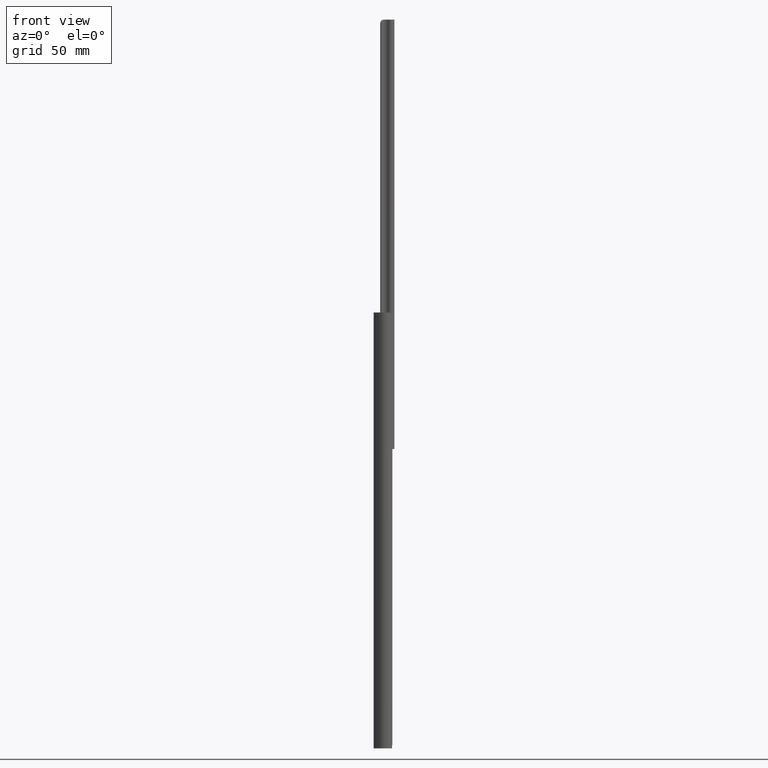
[diagram: clean part render]
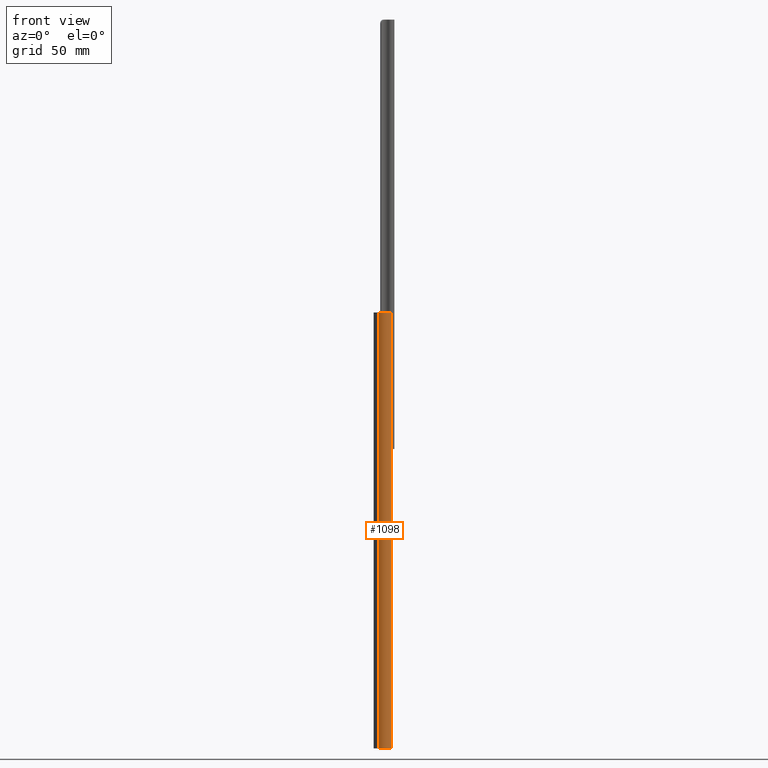
[diagram: same view with one face highlighted and labeled with its STEP entity id]
A machine part, front view. The second image highlights one B-rep face of the part: STEP entity #1098.
In plain terms, the highlighted cylindrical surface (edge-blend (fillet) strip) has radius 3.94 mm, axis along (0, 0, 1).
Its self-contained STEP definition (entity closure, byte-faithful):
#39 = AXIS2_PLACEMENT_3D ( 'NONE', #2961, #2633, #3329 ) ;
#145 = VECTOR ( 'NONE', #305, 1000.000000000000000 ) ;
#171 = CARTESIAN_POINT ( 'NONE',  ( 7.986000717874983224, -12.34600071787499864, -199.6011382278531414 ) ) ;
#299 = VERTEX_POINT ( 'NONE', #2537 ) ;
#305 = DIRECTION ( 'NONE',  ( 0.0000000000000000000, 0.0000000000000000000, 1.000000000000000000 ) ) ;
#315 = EDGE_CURVE ( 'NONE', #299, #3075, #782, .T. ) ;
#423 = ORIENTED_EDGE ( 'NONE', *, *, #3108, .F. ) ;
#482 = ORIENTED_EDGE ( 'NONE', *, *, #1137, .T. ) ;
#492 = CARTESIAN_POINT ( 'NONE',  ( 5.199999999999988631, -9.560000000000002274, -200.0000000000000000 ) ) ;
#522 = CARTESIAN_POINT ( 'NONE',  ( 7.720683610697790300, -12.59516092882049243, -199.8301917521110340 ) ) ;
#551 = CARTESIAN_POINT ( 'NONE',  ( 7.210282003930991834, -12.95554516909084342, 2.981555974335136207E-16 ) ) ;
#614 = CARTESIAN_POINT ( 'NONE',  ( 7.986000717874983224, -12.34600071787499864, -199.6011382278531414 ) ) ;
#704 = B_SPLINE_CURVE_WITH_KNOTS ( 'NONE', 3,
 ( #1259, #1214, #3500, #522, #1847, #171 ),
 .UNSPECIFIED., .F., .F.,
 ( 4, 2, 4 ),
 ( 8.673617379884035472E-19, 0.0006435777314265649258, 0.001287155462853128984 ),
 .UNSPECIFIED. ) ;
#782 = CIRCLE ( 'NONE', #3691, 3.939999999999996394 ) ;
#937 = EDGE_CURVE ( 'NONE', #299, #3514, #1619, .T. ) ;
#1063 = CARTESIAN_POINT ( 'NONE',  ( 7.017185638022793270, -13.05591709812513379, 0.0000000000000000000 ) ) ;
#1075 = VERTEX_POINT ( 'NONE', #614 ) ;
#1098 = ADVANCED_FACE ( 'NONE', ( #2875 ), #4199, .T. ) ;
#1137 = EDGE_CURVE ( 'NONE', #1766, #3701, #1887, .T. ) ;
#1214 = CARTESIAN_POINT ( 'NONE',  ( 7.210287898225705483, -12.95554210522307947, -200.0000000000000284 ) ) ;
#1226 = CARTESIAN_POINT ( 'NONE',  ( 2.413999282124992263, -12.34600071787499864, -200.0000000000000000 ) ) ;
#1258 = AXIS2_PLACEMENT_3D ( 'NONE', #2903, #1266, #2965 ) ;
#1259 = CARTESIAN_POINT ( 'NONE',  ( 7.017185638022798599, -13.05591709812513024, -200.0000000000000000 ) ) ;
#1266 = DIRECTION ( 'NONE',  ( 0.0000000000000000000, 0.0000000000000000000, 1.000000000000000000 ) ) ;
#1311 = CARTESIAN_POINT ( 'NONE',  ( 7.862686910855398281, -12.46931452489458003, -0.2688228963870563648 ) ) ;
#1558 = DIRECTION ( 'NONE',  ( 1.000000000000000000, 0.0000000000000000000, 0.0000000000000000000 ) ) ;
#1603 = LINE ( 'NONE', #4203, #2899 ) ;
#1619 = LINE ( 'NONE', #1226, #145 ) ;
#1766 = VERTEX_POINT ( 'NONE', #2647 ) ;
#1847 = CARTESIAN_POINT ( 'NONE',  ( 7.862703922186483396, -12.46929751356349847, -199.7311591645482736 ) ) ;
#1887 = B_SPLINE_CURVE_WITH_KNOTS ( 'NONE', 3,
 ( #3571, #1311, #2221, #2571, #551, #2289 ),
 .UNSPECIFIED., .F., .F.,
 ( 4, 2, 4 ),
 ( 0.0000000000000000000, 0.0006438049403509742705, 0.001287609880701948541 ),
 .UNSPECIFIED. ) ;
#1962 = ORIENTED_EDGE ( 'NONE', *, *, #315, .T. ) ;
#2187 = CARTESIAN_POINT ( 'NONE',  ( 7.017185638022798599, -13.05591709812513024, -200.0000000000000000 ) ) ;
#2202 = ORIENTED_EDGE ( 'NONE', *, *, #3429, .T. ) ;
#2221 = CARTESIAN_POINT ( 'NONE',  ( 7.719589435054740711, -12.59608095792668792, -0.1691430043712723874 ) ) ;
#2281 = CARTESIAN_POINT ( 'NONE',  ( 2.413999282124992263, -12.34600071787499864, 0.0000000000000000000 ) ) ;
#2289 = CARTESIAN_POINT ( 'NONE',  ( 7.017185638022793270, -13.05591709812513379, 0.0000000000000000000 ) ) ;
#2537 = CARTESIAN_POINT ( 'NONE',  ( 2.413999282124992263, -12.34600071787499864, -200.0000000000000000 ) ) ;
#2571 = CARTESIAN_POINT ( 'NONE',  ( 7.388906070428872042, -12.84250037611028006, -0.03302800207852295278 ) ) ;
#2633 = DIRECTION ( 'NONE',  ( 0.0000000000000000000, 0.0000000000000000000, 1.000000000000000000 ) ) ;
#2647 = CARTESIAN_POINT ( 'NONE',  ( 7.986000717874983224, -12.34600071787499864, -0.3988617721469194799 ) ) ;
#2875 = FACE_OUTER_BOUND ( 'NONE', #3623, .T. ) ;
#2899 = VECTOR ( 'NONE', #2905, 1000.000000000000000 ) ;
#2903 = CARTESIAN_POINT ( 'NONE',  ( 5.199999999999988631, -9.560000000000002274, -200.0000000000000000 ) ) ;
#2905 = DIRECTION ( 'NONE',  ( 0.0000000000000000000, 0.0000000000000000000, 1.000000000000000000 ) ) ;
#2961 = CARTESIAN_POINT ( 'NONE',  ( 5.199999999999988631, -9.560000000000002274, 0.0000000000000000000 ) ) ;
#2965 = DIRECTION ( 'NONE',  ( 1.000000000000000000, 0.0000000000000000000, 0.0000000000000000000 ) ) ;
#3075 = VERTEX_POINT ( 'NONE', #2187 ) ;
#3108 = EDGE_CURVE ( 'NONE', #3514, #3701, #4061, .T. ) ;
#3121 = DIRECTION ( 'NONE',  ( 0.0000000000000000000, 0.0000000000000000000, 1.000000000000000000 ) ) ;
#3329 = DIRECTION ( 'NONE',  ( 1.000000000000000000, 0.0000000000000000000, 0.0000000000000000000 ) ) ;
#3429 = EDGE_CURVE ( 'NONE', #3075, #1075, #704, .T. ) ;
#3500 = CARTESIAN_POINT ( 'NONE',  ( 7.390375522778238171, -12.84150922569065756, -199.9665803470480796 ) ) ;
#3514 = VERTEX_POINT ( 'NONE', #2281 ) ;
#3571 = CARTESIAN_POINT ( 'NONE',  ( 7.986000717874983224, -12.34600071787499864, -0.3988617721469194799 ) ) ;
#3623 = EDGE_LOOP ( 'NONE', ( #3703, #482, #423, #4176, #1962, #2202 ) ) ;
#3691 = AXIS2_PLACEMENT_3D ( 'NONE', #492, #3121, #1558 ) ;
#3701 = VERTEX_POINT ( 'NONE', #1063 ) ;
#3703 = ORIENTED_EDGE ( 'NONE', *, *, #3849, .T. ) ;
#3849 = EDGE_CURVE ( 'NONE', #1075, #1766, #1603, .T. ) ;
#4061 = CIRCLE ( 'NONE', #39, 3.939999999999996394 ) ;
#4176 = ORIENTED_EDGE ( 'NONE', *, *, #937, .F. ) ;
#4199 = CYLINDRICAL_SURFACE ( 'NONE', #1258, 3.939999999999996394 ) ;
#4203 = CARTESIAN_POINT ( 'NONE',  ( 7.986000717874983224, -12.34600071787499864, -200.0000000000000000 ) ) ;